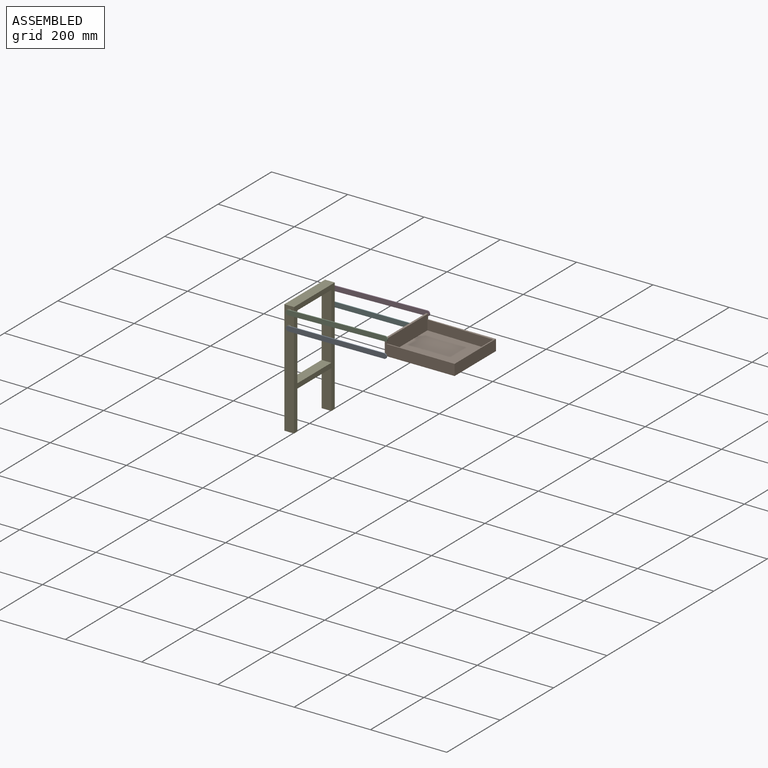
[diagram: assembled view]
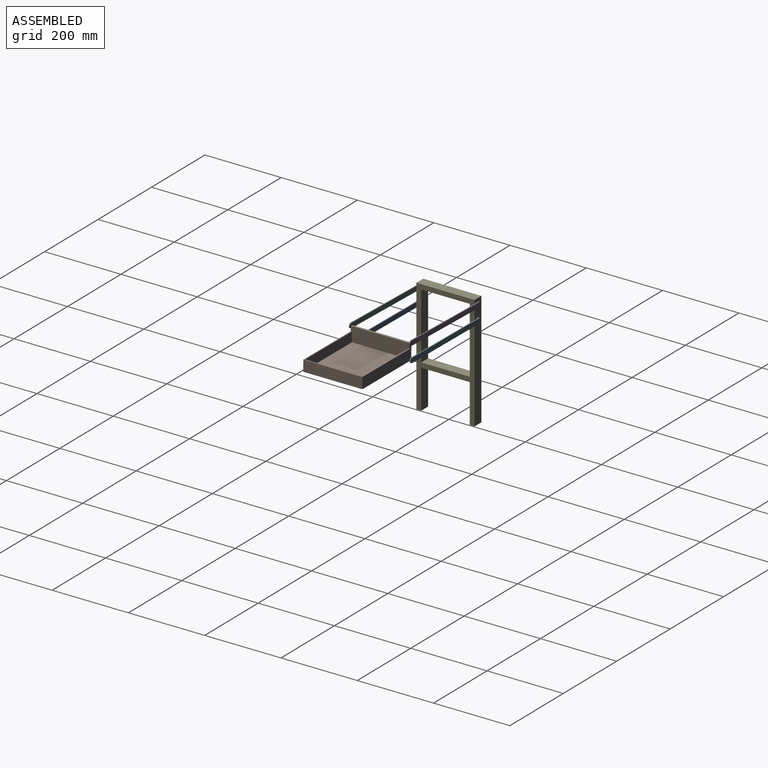
[diagram: assembled view, second angle]
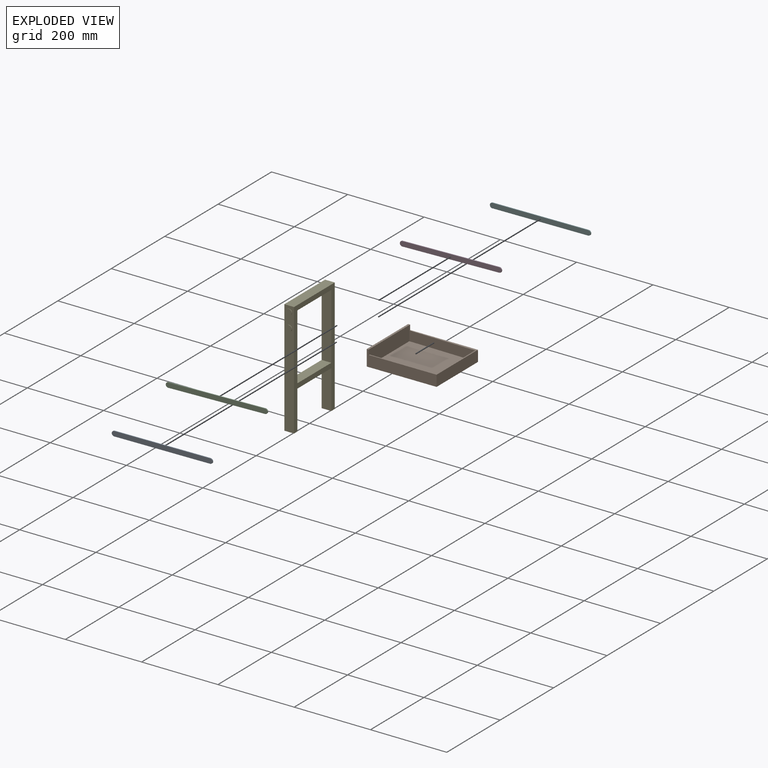
[diagram: exploded view]
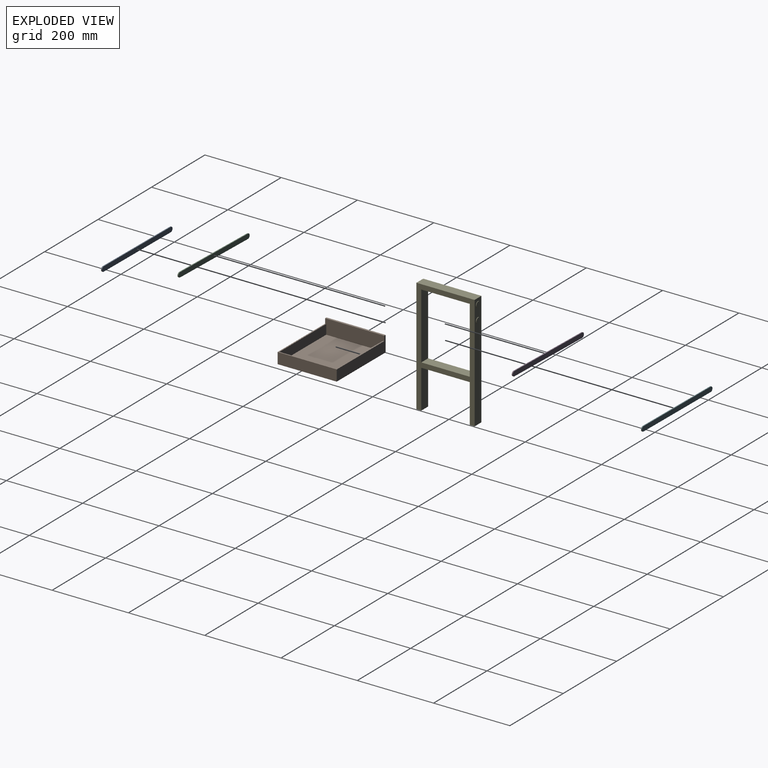
[diagram: exploded view, second angle]
ASSEMBLY  parts=6 mates=8
PART A: 6 faces, bbox 264.2x2.5x12.7 mm
  f0: cylinder r=6.35mm len=12.7mm, axis (0,1,0), area 50.7mm2, adj f1,f3,f4,f5
  f1: plane 251.46x2.54mm, normal (0,0,-1), area 638.7mm2, adj f0,f2,f4,f5
  f2: cylinder r=6.35mm len=12.7mm, axis (0,1,0), area 50.7mm2, adj f1,f3,f4,f5
  f3: plane 251.46x2.54mm, normal (0,0,1), area 638.7mm2, adj f0,f2,f4,f5
  f4: plane 264.16x12.7mm, normal (0,-1,0), area 3320.2mm2, adj f0,f1,f2,f3
  f5: plane 264.16x12.7mm, normal (0,1,0), area 3320.2mm2, adj f0,f1,f2,f3
PART B: 12 faces, bbox 183.1x154.9x41.5 mm
  f0: plane 154.94x38.1mm, normal (1,0,0), area 5755mm2, adj f1,f5,f6,f7,f8,f9,f11
  f1: plane 154.94x5.29mm, normal (0,0,1), area 819.6mm2, adj f0,f2,f6,f7
  f2: plane 154.94x41.49mm, normal (-1,0,0), area 6427.8mm2, adj f1,f3,f6,f7
  f3: plane 183.09x154.94mm, normal (0,0,-1), area 28367.9mm2, adj f2,f4,f6,f7
  f4: plane 154.94x28.79mm, normal (1,0,0), area 4460mm2, adj f3,f6,f7,f9
  f5: plane 174.88x149.15mm, normal (0,0,1), area 25779.8mm2, adj f0,f8,f10,f11
  f6: plane 183.09x41.49mm, normal (0,-1,0), area 5337.5mm2, adj f0,f1,f2,f3,f4,f9
  f7: plane 183.09x41.49mm, normal (0,1,0), area 5337.5mm2, adj f0,f1,f2,f3,f4,f9
  f8: plane 174.88x25.4mm, normal (-0.02,-1,0), area 4442.8mm2, adj f0,f5,f9,f10
  f9: plane 177.8x154.94mm, normal (0,0,1), area 1768.5mm2, adj f0,f4,f6,f7,f8,f10,f11
  f10: plane 145.73x25.4mm, normal (-1,0,0), area 3701.5mm2, adj f5,f8,f9,f11
  f11: plane 174.88x25.4mm, normal (0,1,0), area 4441.9mm2, adj f0,f5,f9,f10
PART C: 6 faces, bbox 266.7x2.5x12.7 mm
  f0: cylinder r=6.35mm len=12.7mm, axis (0,1,0), area 50.7mm2, adj f1,f3,f4,f5
  f1: plane 254x2.54mm, normal (0,0,-1), area 645.2mm2, adj f0,f2,f4,f5
  f2: cylinder r=6.35mm len=12.7mm, axis (0,1,0), area 50.7mm2, adj f1,f3,f4,f5
  f3: plane 254x2.54mm, normal (0,0,1), area 645.2mm2, adj f0,f2,f4,f5
  f4: plane 266.7x12.7mm, normal (0,-1,0), area 3352.5mm2, adj f0,f1,f2,f3
  f5: plane 266.7x12.7mm, normal (0,1,0), area 3352.5mm2, adj f0,f1,f2,f3
PART D: same geometry as C
PART E: 22 faces, bbox 25.4x154.9x299.7 mm
  f0: plane 172.72x25.4mm, normal (0,1,0), area 4387.1mm2, adj f1,f11,f12,f13
  f1: plane 127x25.4mm, normal (0,0,-1), area 3225.8mm2, adj f0,f2,f12,f13
  f2: plane 172.72x25.4mm, normal (0,-1,0), area 4387.1mm2, adj f1,f11,f12,f13
  f3: plane 127x25.4mm, normal (0,0,-1), area 3225.8mm2, adj f4,f10,f12,f13
  f4: plane 101.6x25.4mm, normal (0,-1,0), area 2580.6mm2, adj f3,f5,f12,f13
  f5: plane 25.4x12.7mm, normal (0,0,-1), area 322.6mm2, adj f4,f6,f12,f13
  f6: plane 299.72x25.4mm, normal (0,1,0), area 7248.1mm2, adj f5,f7,f12,f13,f18,f20
  f7: plane 152.4x25.4mm, normal (0,0,1), area 3871mm2, adj f6,f8,f12,f13
  f8: plane 299.72x25.4mm, normal (0,-1,0), area 7248.1mm2, adj f7,f9,f12,f13,f14,f16
  f9: plane 25.4x12.7mm, normal (0,0,-1), area 322.6mm2, adj f8,f10,f12,f13
  f10: plane 101.6x25.4mm, normal (0,1,0), area 2580.6mm2, adj f3,f9,f12,f13
  f11: plane 127x25.4mm, normal (0,0,1), area 3225.8mm2, adj f0,f2,f12,f13
  f12: plane 299.72x152.4mm, normal (1,0,0), area 10838.7mm2, adj f0,f1,f2,f3,f4,f5,f6,f7
  f13: plane 299.72x152.4mm, normal (-1,0,0), area 10838.7mm2, adj f0,f1,f2,f3,f4,f5,f6,f7
  f14: cylinder r=7.62mm len=15.24mm, axis (0,1,0), area 60.8mm2, adj f8,f15
  f15: plane 15.24x15.24mm, normal (0,-1,0), area 182.4mm2, adj f14
  f16: cylinder r=7.62mm len=15.24mm, axis (0,1,0), area 60.8mm2, adj f8,f17
  f17: plane 15.24x15.24mm, normal (0,-1,0), area 182.4mm2, adj f16
  f18: cylinder r=7.62mm len=15.24mm, axis (0,-1,0), area 60.8mm2, adj f6,f19
  f19: plane 15.24x15.24mm, normal (0,1,0), area 182.4mm2, adj f18
  f20: cylinder r=7.62mm len=15.24mm, axis (0,-1,0), area 60.8mm2, adj f6,f21
  f21: plane 15.24x15.24mm, normal (0,1,0), area 182.4mm2, adj f20
PART F: same geometry as A
PLACE A rot(axis=(0,-1,0),0.6deg) t=(125.72,-78.74,133.31)mm
PLACE B rot(axis=(0,-1,0),0.2deg) t=(256.72,0,137.95)mm
PLACE C rot(axis=(0,-1,0),1.3deg) t=(126.97,-78.74,173.11)mm
PLACE D rot(axis=(0,-1,0),1.3deg) t=(126.97,78.74,173.11)mm
PLACE E t=(0,0,35.56)mm
PLACE F rot(axis=(0,-1,0),0.6deg) t=(125.72,78.74,133.31)mm
MATE revolute B.f6 <-> A.f2  axis (0,-1,0) through (251.45,-77.47,134.54)mm
MATE revolute D.f2 <-> B.f7  axis (0,-1,0) through (253.93,77.47,176.04)mm
MATE revolute E.f14 <-> F.f0  axis (0,1,0) through (0,77.47,132.08)mm
MATE revolute F.f2 <-> B.f7  axis (0,-1,0) through (251.45,77.47,134.54)mm
MATE revolute C.f2 <-> B.f6  axis (0,1,0) through (253.93,-77.47,176.04)mm
MATE revolute C.f0 <-> E.f16  axis (0,1,0) through (0,-77.47,170.18)mm
MATE revolute A.f0 <-> E.f14  axis (0,1,0) through (0,-77.47,132.08)mm
MATE revolute D.f0 <-> E.f16  axis (0,-1,0) through (0,77.47,170.18)mm
